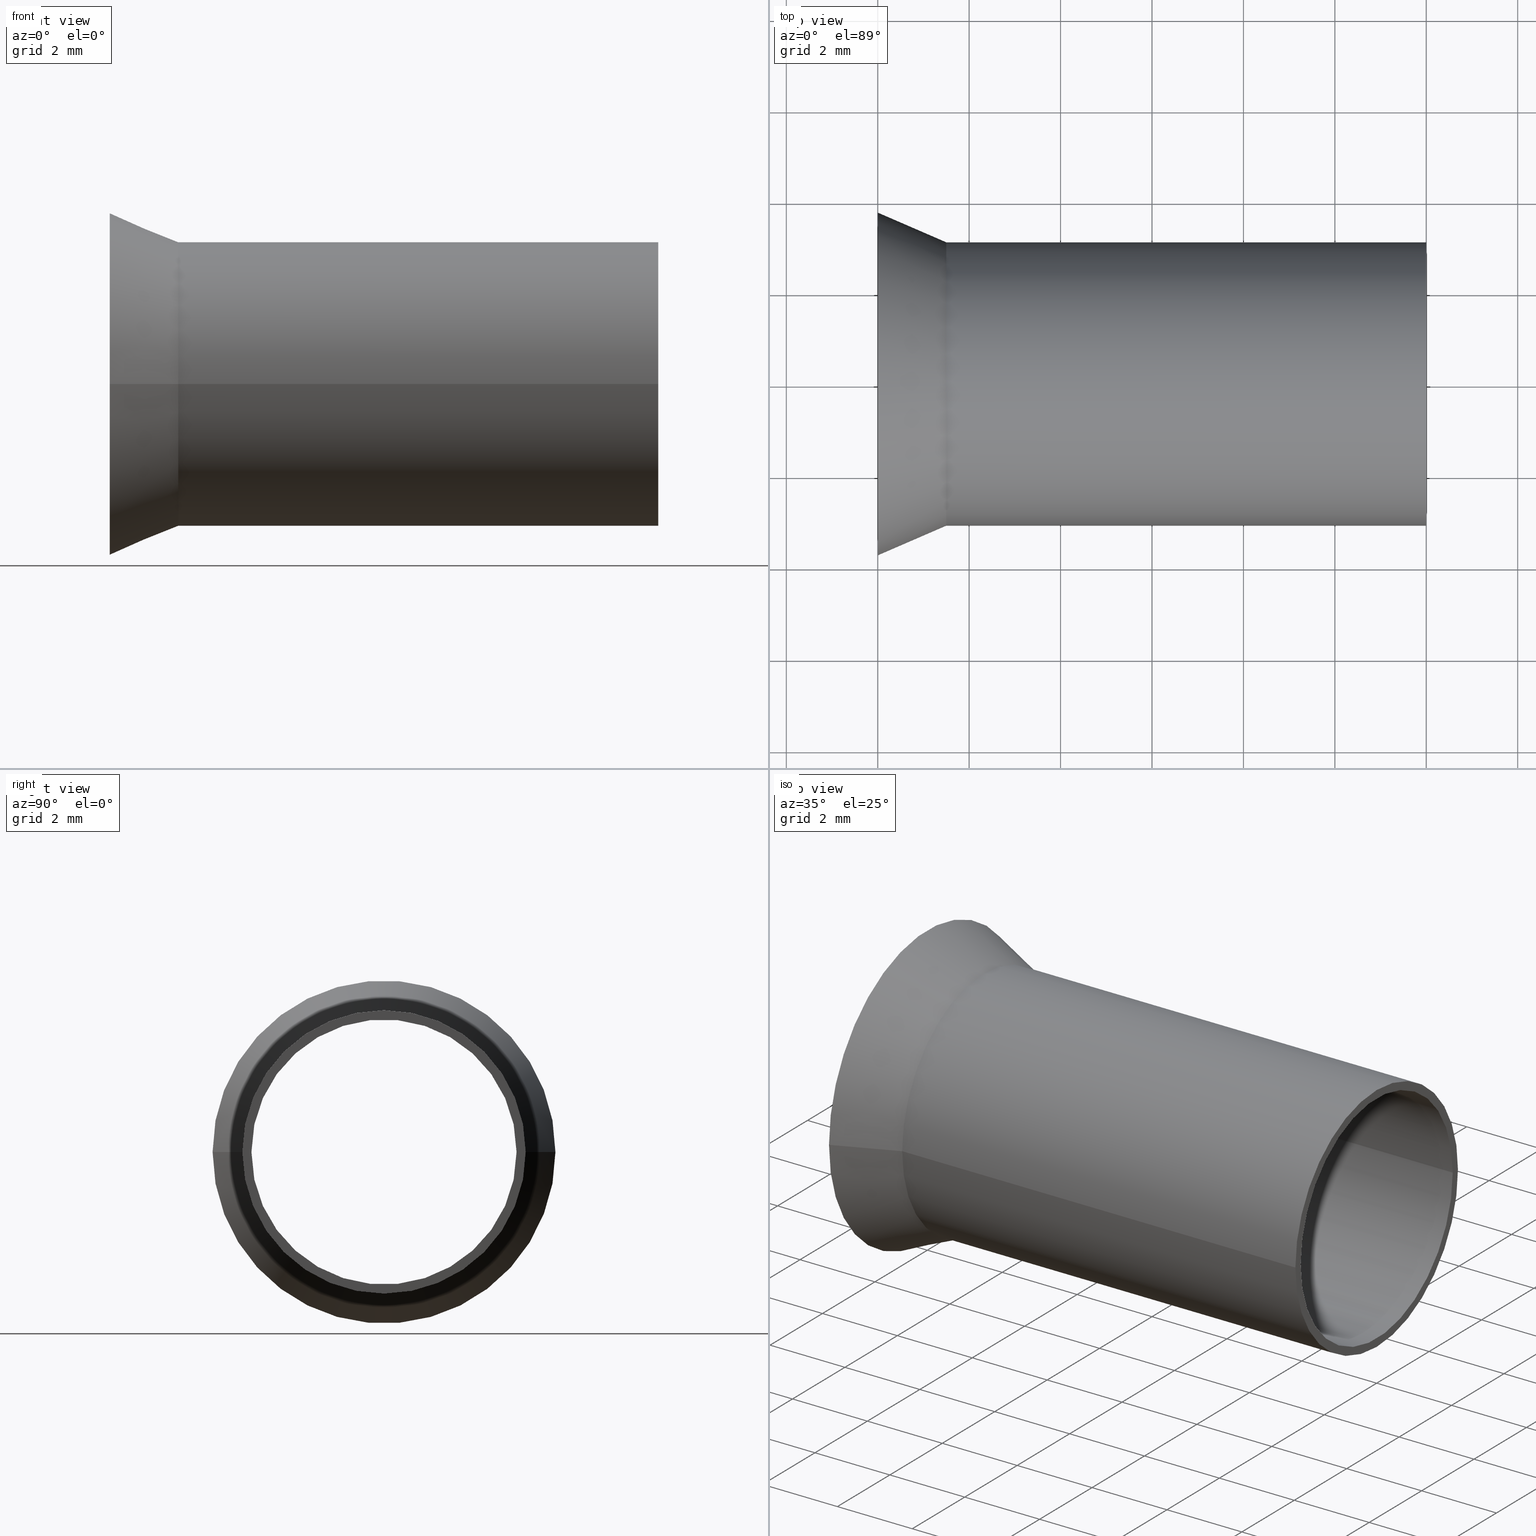
[diagram: canonical four-view strip — front | top / right | iso, engineering-drawing reading convention]
A machine part, canonical four-view strip (front | top / right | iso — engineering-drawing reading convention). The complete STEP part file that produces these views, byte-faithful:
ISO-10303-21;
HEADER;
FILE_DESCRIPTION(('SolidDesigner STEP Export'),'2;1');
FILE_NAME('3200425_A_16_12-select.stp','2016-05-12T13:46:16',(''),(''),
'Creo Elements/Direct Modeling STEP processor for AP214 (Solid Model)',
'Creo Elements/Direct Modeling 18.1G  27-Feb-2015 (C) Parametric Technol
ogy GmbH','');
FILE_SCHEMA(('AUTOMOTIVE_DESIGN { 1 0 10303 214 1 1 1 1 }'));
ENDSEC;
DATA;
#10=CARTESIAN_POINT('',(0.,3.325,0.));
#20=DIRECTION('',(-1.,0.,0.));
#30=DIRECTION('',(0.,1.,0.));
#40=AXIS2_PLACEMENT_3D('',#10,#20,#30);
#50=PLANE('',#40);
#60=CARTESIAN_POINT('',(0.,0.,0.));
#70=DIRECTION('',(1.,0.,0.));
#80=DIRECTION('',(0.,1.,0.));
#90=AXIS2_PLACEMENT_3D('',#60,#70,#80);
#100=CIRCLE('',#90,2.9);
#110=CARTESIAN_POINT('',(0.,2.9,0.));
#120=VERTEX_POINT('',#110);
#130=CARTESIAN_POINT('',(0.,-2.9,-3.55147571752732E-16));
#140=VERTEX_POINT('',#130);
#150=EDGE_CURVE('',#120,#140,#100,.T.);
#160=ORIENTED_EDGE('',*,*,#150,.T.);
#170=EDGE_CURVE('',#140,#120,#100,.T.);
#180=ORIENTED_EDGE('',*,*,#170,.T.);
#190=EDGE_LOOP('',(#180,#160));
#200=FACE_BOUND('',#190,.T.);
#210=CARTESIAN_POINT('',(0.,0.,0.));
#220=DIRECTION('',(1.,0.,0.));
#230=DIRECTION('',(0.,1.,0.));
#240=AXIS2_PLACEMENT_3D('',#210,#220,#230);
#250=CIRCLE('',#240,3.75);
#260=CARTESIAN_POINT('',(0.,3.75,0.));
#270=VERTEX_POINT('',#260);
#280=CARTESIAN_POINT('',(4.1036458038222E-32,-3.75,-4.59242549680258E-16
));
#290=VERTEX_POINT('',#280);
#300=EDGE_CURVE('',#270,#290,#250,.T.);
#310=ORIENTED_EDGE('',*,*,#300,.F.);
#320=EDGE_CURVE('',#290,#270,#250,.T.);
#330=ORIENTED_EDGE('',*,*,#320,.F.);
#340=EDGE_LOOP('',(#330,#310));
#350=FACE_OUTER_BOUND('',#340,.T.);
#360=ADVANCED_FACE('',(#200,#350),#50,.T.);
#370=COLOUR_RGB('',1.,1.,1.);
#380=FILL_AREA_STYLE_COLOUR('',#370);
#390=FILL_AREA_STYLE('',(#380));
#400=SURFACE_STYLE_FILL_AREA(#390);
#410=SURFACE_SIDE_STYLE('',(#400));
#420=SURFACE_STYLE_USAGE(.BOTH.,#410);
#430=PRESENTATION_STYLE_ASSIGNMENT((#420));
#440=CARTESIAN_POINT('',(6.,0.,0.));
#450=DIRECTION('',(-1.,0.,0.));
#460=DIRECTION('',(0.,1.,0.));
#470=AXIS2_PLACEMENT_3D('',#440,#450,#460);
#480=CYLINDRICAL_SURFACE('',#470,2.9);
#490=CARTESIAN_POINT('',(6.,-2.9,-3.55147571752732E-16));
#500=DIRECTION('',(-1.,0.,0.));
#510=VECTOR('',#500,1.);
#520=LINE('',#490,#510);
#530=CARTESIAN_POINT('',(12.,-2.9,-3.55147571752732E-16));
#540=VERTEX_POINT('',#530);
#550=EDGE_CURVE('',#540,#140,#520,.T.);
#560=ORIENTED_EDGE('',*,*,#550,.F.);
#570=ORIENTED_EDGE('',*,*,#170,.F.);
#580=CARTESIAN_POINT('',(6.,2.9,0.));
#590=DIRECTION('',(-1.,0.,0.));
#600=VECTOR('',#590,1.);
#610=LINE('',#580,#600);
#620=CARTESIAN_POINT('',(12.,2.9,0.));
#630=VERTEX_POINT('',#620);
#640=EDGE_CURVE('',#630,#120,#610,.T.);
#650=ORIENTED_EDGE('',*,*,#640,.T.);
#660=CARTESIAN_POINT('',(12.,0.,0.));
#670=DIRECTION('',(1.,0.,0.));
#680=DIRECTION('',(0.,1.,0.));
#690=AXIS2_PLACEMENT_3D('',#660,#670,#680);
#700=CIRCLE('',#690,2.9);
#710=EDGE_CURVE('',#540,#630,#700,.T.);
#720=ORIENTED_EDGE('',*,*,#710,.T.);
#730=EDGE_LOOP('',(#720,#650,#570,#560));
#740=FACE_OUTER_BOUND('',#730,.T.);
#750=ADVANCED_FACE('',(#740),#480,.F.);
#760=COLOUR_RGB('',1.,1.,1.);
#770=FILL_AREA_STYLE_COLOUR('',#760);
#780=FILL_AREA_STYLE('',(#770));
#790=SURFACE_STYLE_FILL_AREA(#780);
#800=SURFACE_SIDE_STYLE('',(#790));
#810=SURFACE_STYLE_USAGE(.BOTH.,#800);
#820=PRESENTATION_STYLE_ASSIGNMENT((#810));
#830=CARTESIAN_POINT('',(12.,3.,0.));
#840=DIRECTION('',(-1.,0.,0.));
#850=DIRECTION('',(0.,1.,0.));
#860=AXIS2_PLACEMENT_3D('',#830,#840,#850);
#870=PLANE('',#860);
#880=CARTESIAN_POINT('',(12.,0.,0.));
#890=DIRECTION('',(1.,0.,0.));
#900=DIRECTION('',(0.,1.,0.));
#910=AXIS2_PLACEMENT_3D('',#880,#890,#900);
#920=CIRCLE('',#910,3.1);
#930=CARTESIAN_POINT('',(12.,3.1,0.));
#940=VERTEX_POINT('',#930);
#950=CARTESIAN_POINT('',(12.,-3.1,-3.79640507735679E-16));
#960=VERTEX_POINT('',#950);
#970=EDGE_CURVE('',#940,#960,#920,.T.);
#980=ORIENTED_EDGE('',*,*,#970,.T.);
#990=EDGE_CURVE('',#960,#940,#920,.T.);
#1000=ORIENTED_EDGE('',*,*,#990,.T.);
#1010=EDGE_LOOP('',(#1000,#980));
#1020=FACE_OUTER_BOUND('',#1010,.T.);
#1030=EDGE_CURVE('',#630,#540,#700,.T.);
#1040=ORIENTED_EDGE('',*,*,#1030,.F.);
#1050=ORIENTED_EDGE('',*,*,#710,.F.);
#1060=EDGE_LOOP('',(#1050,#1040));
#1070=FACE_BOUND('',#1060,.T.);
#1080=ADVANCED_FACE('',(#1020,#1070),#870,.F.);
#1090=COLOUR_RGB('',1.,1.,1.);
#1100=FILL_AREA_STYLE_COLOUR('',#1090);
#1110=FILL_AREA_STYLE('',(#1100));
#1120=SURFACE_STYLE_FILL_AREA(#1110);
#1130=SURFACE_SIDE_STYLE('',(#1120));
#1140=SURFACE_STYLE_USAGE(.BOTH.,#1130);
#1150=PRESENTATION_STYLE_ASSIGNMENT((#1140));
#1160=CARTESIAN_POINT('',(6.75,0.,0.));
#1170=DIRECTION('',(-1.,0.,0.));
#1180=DIRECTION('',(0.,1.,0.));
#1190=AXIS2_PLACEMENT_3D('',#1160,#1170,#1180);
#1200=CYLINDRICAL_SURFACE('',#1190,3.1);
#1210=CARTESIAN_POINT('',(6.75,-3.1,-3.79640507735679E-16));
#1220=DIRECTION('',(-1.,0.,0.));
#1230=VECTOR('',#1220,1.);
#1240=LINE('',#1210,#1230);
#1250=CARTESIAN_POINT('',(1.5,-3.1,-3.79640507735679E-16));
#1260=VERTEX_POINT('',#1250);
#1270=EDGE_CURVE('',#960,#1260,#1240,.T.);
#1280=ORIENTED_EDGE('',*,*,#1270,.T.);
#1290=ORIENTED_EDGE('',*,*,#990,.F.);
#1300=CARTESIAN_POINT('',(6.75,3.1,0.));
#1310=DIRECTION('',(-1.,0.,0.));
#1320=VECTOR('',#1310,1.);
#1330=LINE('',#1300,#1320);
#1340=CARTESIAN_POINT('',(1.5,3.1,0.));
#1350=VERTEX_POINT('',#1340);
#1360=EDGE_CURVE('',#940,#1350,#1330,.T.);
#1370=ORIENTED_EDGE('',*,*,#1360,.F.);
#1380=CARTESIAN_POINT('',(1.5,0.,0.));
#1390=DIRECTION('',(1.,0.,0.));
#1400=DIRECTION('',(0.,1.,0.));
#1410=AXIS2_PLACEMENT_3D('',#1380,#1390,#1400);
#1420=CIRCLE('',#1410,3.1);
#1430=EDGE_CURVE('',#1260,#1350,#1420,.T.);
#1440=ORIENTED_EDGE('',*,*,#1430,.T.);
#1450=EDGE_LOOP('',(#1440,#1370,#1290,#1280));
#1460=FACE_OUTER_BOUND('',#1450,.T.);
#1470=ADVANCED_FACE('',(#1460),#1200,.T.);
#1480=COLOUR_RGB('',1.,1.,1.);
#1490=FILL_AREA_STYLE_COLOUR('',#1480);
#1500=FILL_AREA_STYLE('',(#1490));
#1510=SURFACE_STYLE_FILL_AREA(#1500);
#1520=SURFACE_SIDE_STYLE('',(#1510));
#1530=SURFACE_STYLE_USAGE(.BOTH.,#1520);
#1540=PRESENTATION_STYLE_ASSIGNMENT((#1530));
#1550=CARTESIAN_POINT('',(0.,0.,0.));
#1560=DIRECTION('',(-1.,0.,0.));
#1570=DIRECTION('',(0.,1.,0.));
#1580=AXIS2_PLACEMENT_3D('',#1550,#1560,#1570);
#1590=CONICAL_SURFACE('',#1580,3.75,0.408907828950925);
#1600=CARTESIAN_POINT('',(0.,-3.75,-4.59242549680258E-16));
#1610=DIRECTION('',(-0.917555625309924,-0.397607437634301,
-4.86928675816027E-17));
#1620=VECTOR('',#1610,9.43141311015681);
#1630=LINE('',#1600,#1620);
#1640=EDGE_CURVE('',#1260,#290,#1630,.T.);
#1650=ORIENTED_EDGE('',*,*,#1640,.T.);
#1660=ORIENTED_EDGE('',*,*,#1430,.F.);
#1670=CARTESIAN_POINT('',(0.,3.75,0.));
#1680=DIRECTION('',(-0.917555625309924,0.397607437634301,0.));
#1690=VECTOR('',#1680,9.43141311015681);
#1700=LINE('',#1670,#1690);
#1710=EDGE_CURVE('',#1350,#270,#1700,.T.);
#1720=ORIENTED_EDGE('',*,*,#1710,.F.);
#1730=ORIENTED_EDGE('',*,*,#320,.T.);
#1740=EDGE_LOOP('',(#1730,#1720,#1660,#1650));
#1750=FACE_OUTER_BOUND('',#1740,.T.);
#1760=ADVANCED_FACE('',(#1750),#1590,.T.);
#1770=COLOUR_RGB('',1.,1.,1.);
#1780=FILL_AREA_STYLE_COLOUR('',#1770);
#1790=FILL_AREA_STYLE('',(#1780));
#1800=SURFACE_STYLE_FILL_AREA(#1790);
#1810=SURFACE_SIDE_STYLE('',(#1800));
#1820=SURFACE_STYLE_USAGE(.BOTH.,#1810);
#1830=PRESENTATION_STYLE_ASSIGNMENT((#1820));
#1840=CARTESIAN_POINT('',(0.,0.,0.));
#1850=DIRECTION('',(-1.,0.,0.));
#1860=DIRECTION('',(0.,1.,0.));
#1870=AXIS2_PLACEMENT_3D('',#1840,#1850,#1860);
#1880=CONICAL_SURFACE('',#1870,3.75,0.408907828950925);
#1890=EDGE_CURVE('',#1350,#1260,#1420,.T.);
#1900=ORIENTED_EDGE('',*,*,#1890,.F.);
#1910=ORIENTED_EDGE('',*,*,#1640,.F.);
#1920=ORIENTED_EDGE('',*,*,#300,.T.);
#1930=ORIENTED_EDGE('',*,*,#1710,.T.);
#1940=EDGE_LOOP('',(#1930,#1920,#1910,#1900));
#1950=FACE_OUTER_BOUND('',#1940,.T.);
#1960=ADVANCED_FACE('',(#1950),#1880,.T.);
#1970=COLOUR_RGB('',1.,1.,1.);
#1980=FILL_AREA_STYLE_COLOUR('',#1970);
#1990=FILL_AREA_STYLE('',(#1980));
#2000=SURFACE_STYLE_FILL_AREA(#1990);
#2010=SURFACE_SIDE_STYLE('',(#2000));
#2020=SURFACE_STYLE_USAGE(.BOTH.,#2010);
#2030=PRESENTATION_STYLE_ASSIGNMENT((#2020));
#2040=CARTESIAN_POINT('',(6.75,0.,0.));
#2050=DIRECTION('',(-1.,0.,0.));
#2060=DIRECTION('',(0.,1.,0.));
#2070=AXIS2_PLACEMENT_3D('',#2040,#2050,#2060);
#2080=CYLINDRICAL_SURFACE('',#2070,3.1);
#2090=ORIENTED_EDGE('',*,*,#970,.F.);
#2100=ORIENTED_EDGE('',*,*,#1270,.F.);
#2110=ORIENTED_EDGE('',*,*,#1890,.T.);
#2120=ORIENTED_EDGE('',*,*,#1360,.T.);
#2130=EDGE_LOOP('',(#2120,#2110,#2100,#2090));
#2140=FACE_OUTER_BOUND('',#2130,.T.);
#2150=ADVANCED_FACE('',(#2140),#2080,.T.);
#2160=COLOUR_RGB('',1.,1.,1.);
#2170=FILL_AREA_STYLE_COLOUR('',#2160);
#2180=FILL_AREA_STYLE('',(#2170));
#2190=SURFACE_STYLE_FILL_AREA(#2180);
#2200=SURFACE_SIDE_STYLE('',(#2190));
#2210=SURFACE_STYLE_USAGE(.BOTH.,#2200);
#2220=PRESENTATION_STYLE_ASSIGNMENT((#2210));
#2230=CARTESIAN_POINT('',(6.,0.,0.));
#2240=DIRECTION('',(-1.,0.,0.));
#2250=DIRECTION('',(0.,1.,0.));
#2260=AXIS2_PLACEMENT_3D('',#2230,#2240,#2250);
#2270=CYLINDRICAL_SURFACE('',#2260,2.9);
#2280=ORIENTED_EDGE('',*,*,#150,.F.);
#2290=ORIENTED_EDGE('',*,*,#550,.T.);
#2300=ORIENTED_EDGE('',*,*,#1030,.T.);
#2310=ORIENTED_EDGE('',*,*,#640,.F.);
#2320=EDGE_LOOP('',(#2310,#2300,#2290,#2280));
#2330=FACE_OUTER_BOUND('',#2320,.T.);
#2340=ADVANCED_FACE('',(#2330),#2270,.F.);
#2350=COLOUR_RGB('',1.,1.,1.);
#2360=FILL_AREA_STYLE_COLOUR('',#2350);
#2370=FILL_AREA_STYLE('',(#2360));
#2380=SURFACE_STYLE_FILL_AREA(#2370);
#2390=SURFACE_SIDE_STYLE('',(#2380));
#2400=SURFACE_STYLE_USAGE(.BOTH.,#2390);
#2410=PRESENTATION_STYLE_ASSIGNMENT((#2400));
#2420=CLOSED_SHELL('',(#360,#750,#1080,#1470,#1760,#1960,#2150,#2340));
#2430=MANIFOLD_SOLID_BREP('',#2420);
#2440=CARTESIAN_POINT('',(0.,0.,0.));
#2450=DIRECTION('',(0.,0.,1.));
#2460=DIRECTION('',(1.,0.,0.));
#2470=AXIS2_PLACEMENT_3D('',#2440,#2450,#2460);
#2480=APPLICATION_CONTEXT(' ');
#2490=APPLICATION_PROTOCOL_DEFINITION(' ','automotive_design',1998,#2480
);
#2500=PRODUCT_CONTEXT('',#2480,'mechanical');
#2510=PRODUCT_DEFINITION_CONTEXT('part definition',#2480,'design');
#2520=PRODUCT('3200425_A_16_12-select','3200425_A_16_12-select','',(
#2500));
#2530=PRODUCT_RELATED_PRODUCT_CATEGORY('part',' ',(#2520));
#2540=PRODUCT_DEFINITION_FORMATION_WITH_SPECIFIED_SOURCE('','',#2520,
.BOUGHT.);
#2550=PRODUCT_DEFINITION('',' ',#2540,#2510);
#2560=PRODUCT_DEFINITION_SHAPE('','',#2550);
#2570=DIMENSIONAL_EXPONENTS(1.,0.,0.,0.,0.,0.,0.);
#2580=DIMENSIONAL_EXPONENTS(0.,0.,0.,0.,0.,0.,0.);
#2590=DIMENSIONAL_EXPONENTS(0.,0.,0.,0.,0.,0.,0.);
#2600=(LENGTH_UNIT() NAMED_UNIT(*) SI_UNIT(.MILLI.,.METRE.));
#2610=(NAMED_UNIT(*) PLANE_ANGLE_UNIT() SI_UNIT($,.RADIAN.));
#2620=(NAMED_UNIT(*) SI_UNIT($,.STERADIAN.) SOLID_ANGLE_UNIT());
#2630=(GEOMETRIC_REPRESENTATION_CONTEXT(3) 
GLOBAL_UNCERTAINTY_ASSIGNED_CONTEXT((#2640)) 
GLOBAL_UNIT_ASSIGNED_CONTEXT((#2600,#2610,#2620)) REPRESENTATION_CONTEXT
('',''));
#2640=UNCERTAINTY_MEASURE_WITH_UNIT(LENGTH_MEASURE(1.E-6),#2600,
'distance_accuracy_value','maximum gap value');
#2650=ADVANCED_BREP_SHAPE_REPRESENTATION('',(#2470,#2430),#2630);
#2660=SHAPE_DEFINITION_REPRESENTATION(#2560,#2650);
#2670=COLOUR_RGB('',1.,1.,1.);
#2680=FILL_AREA_STYLE_COLOUR('',#2670);
#2690=FILL_AREA_STYLE('',(#2680));
#2700=SURFACE_STYLE_FILL_AREA(#2690);
#2710=SURFACE_SIDE_STYLE('',(#2700));
#2720=SURFACE_STYLE_USAGE(.BOTH.,#2710);
#2730=PRESENTATION_STYLE_ASSIGNMENT((#2720));
#2740=STYLED_ITEM('',(#2730),#2430);
#2750=OVER_RIDING_STYLED_ITEM('',(#430),#360,#2740);
#2760=OVER_RIDING_STYLED_ITEM('',(#820),#750,#2740);
#2770=OVER_RIDING_STYLED_ITEM('',(#1150),#1080,#2740);
#2780=OVER_RIDING_STYLED_ITEM('',(#1540),#1470,#2740);
#2790=OVER_RIDING_STYLED_ITEM('',(#1830),#1760,#2740);
#2800=OVER_RIDING_STYLED_ITEM('',(#2030),#1960,#2740);
#2810=OVER_RIDING_STYLED_ITEM('',(#2220),#2150,#2740);
#2820=OVER_RIDING_STYLED_ITEM('',(#2410),#2340,#2740);
#2830=DRAUGHTING_MODEL('',(#2740,#2750,#2760,#2770,#2780,#2790,#2800,
#2810,#2820),#2630);
ENDSEC;
END-ISO-10303-21;
